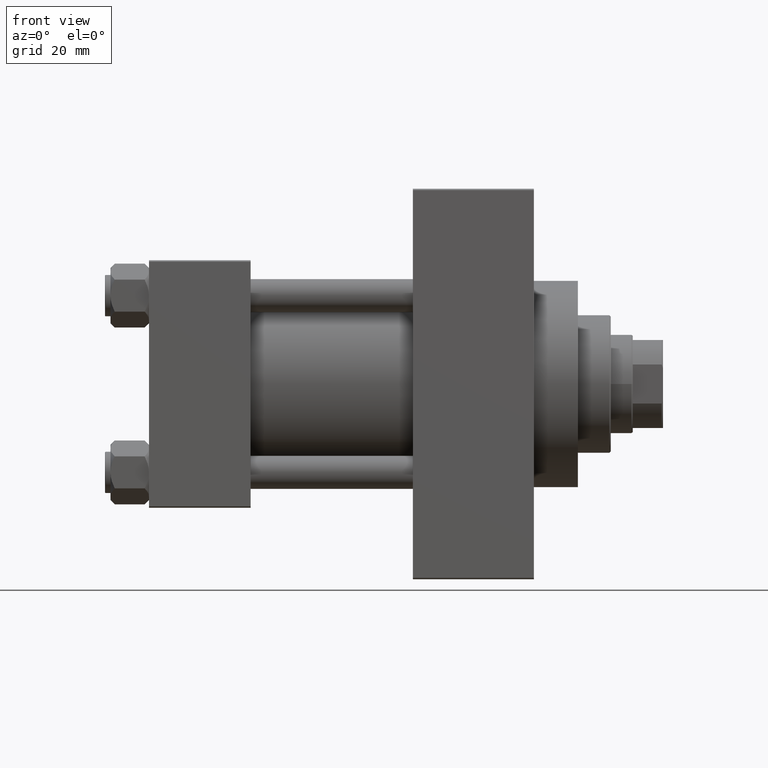
[diagram: clean part render]
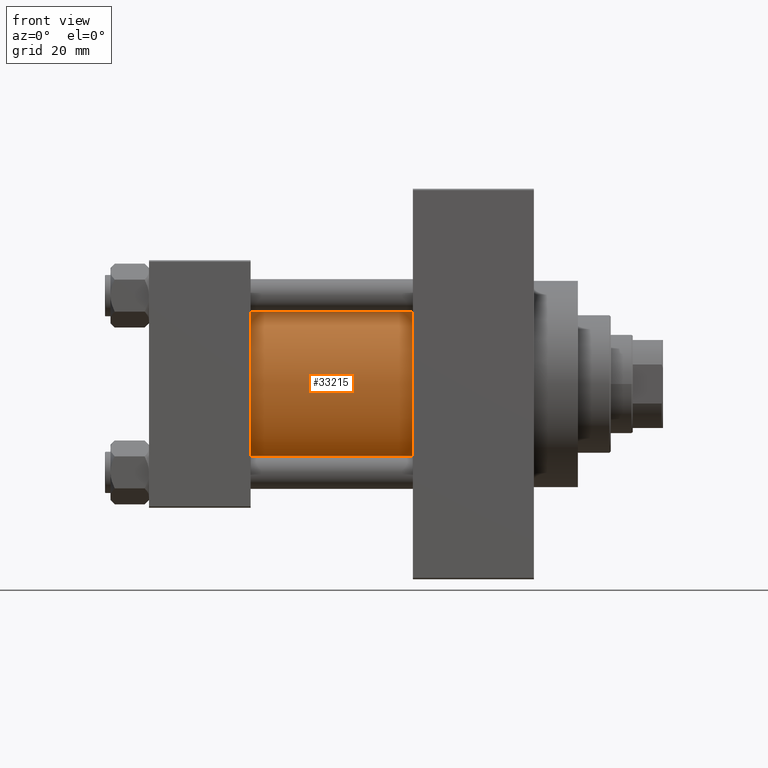
[diagram: same view with one face highlighted and labeled with its STEP entity id]
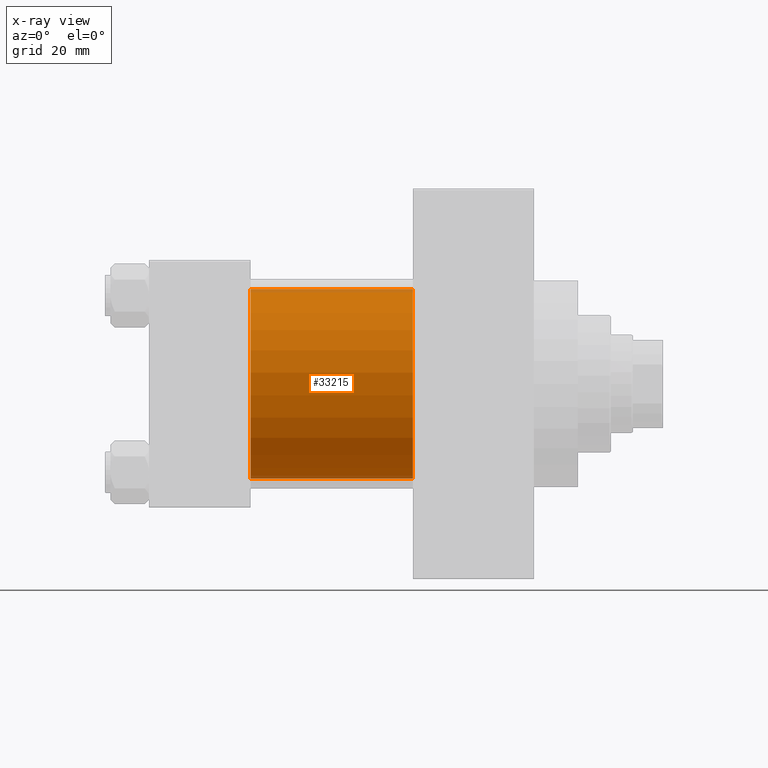
[diagram: x-ray of the same camera — body ghosted, the highlighted face saturated]
A machine part, front view. The second image highlights one B-rep face of the part: STEP entity #33215.
The next image is the same camera in x-ray: the body ghosted, the highlighted face saturated — about 3% of this face is hidden behind the body in this view.
In plain terms, the highlighted cylindrical surface (partial cylindrical patch) has radius 34.5 mm, axis along (-1, -0, -0).
Its self-contained STEP definition (entity closure, byte-faithful):
#453 = EDGE_CURVE ( 'NONE', #4393, #39262, #39562, .T. ) ;
#809 = LINE ( 'NONE', #15425, #40118 ) ;
#941 = VECTOR ( 'NONE', #11174, 1000.000000000000000 ) ;
#3379 = CARTESIAN_POINT ( 'NONE',  ( 96.00000000000000000, -2.602085213965210642E-15, 0.000000000000000000 ) ) ;
#3628 = FACE_OUTER_BOUND ( 'NONE', #35576, .T. ) ;
#3898 = VERTEX_POINT ( 'NONE', #30121 ) ;
#4393 = VERTEX_POINT ( 'NONE', #7474 ) ;
#5142 = ORIENTED_EDGE ( 'NONE', *, *, #34653, .T. ) ;
#7474 = CARTESIAN_POINT ( 'NONE',  ( 37.00000000000000000, -2.602085213965210642E-15, 34.50000000000000000 ) ) ;
#10590 = DIRECTION ( 'NONE',  ( 1.000000000000000000, 0.000000000000000000, 0.000000000000000000 ) ) ;
#10831 = DIRECTION ( 'NONE',  ( 0.000000000000000000, 0.000000000000000000, -1.000000000000000000 ) ) ;
#11174 = DIRECTION ( 'NONE',  ( -1.000000000000000000, -0.000000000000000000, -0.000000000000000000 ) ) ;
#11973 = AXIS2_PLACEMENT_3D ( 'NONE', #40786, #18741, #30130 ) ;
#13304 = ORIENTED_EDGE ( 'NONE', *, *, #453, .T. ) ;
#14270 = DIRECTION ( 'NONE',  ( 1.000000000000000000, -0.000000000000000000, 0.000000000000000000 ) ) ;
#14275 = AXIS2_PLACEMENT_3D ( 'NONE', #14980, #14270, #29361 ) ;
#14980 = CARTESIAN_POINT ( 'NONE',  ( 37.00000000000000000, -2.602085213965210642E-15, 0.000000000000000000 ) ) ;
#15425 = CARTESIAN_POINT ( 'NONE',  ( 96.00000000000000000, 1.622946243093158675E-15, -34.50000000000000000 ) ) ;
#18741 = DIRECTION ( 'NONE',  ( -1.000000000000000000, -0.000000000000000000, -0.000000000000000000 ) ) ;
#20134 = ORIENTED_EDGE ( 'NONE', *, *, #35129, .F. ) ;
#21889 = VERTEX_POINT ( 'NONE', #22009 ) ;
#22009 = CARTESIAN_POINT ( 'NONE',  ( 96.00000000000000000, -2.602085213965210642E-15, 34.50000000000000000 ) ) ;
#23598 = CARTESIAN_POINT ( 'NONE',  ( 37.00000000000000000, 1.622946243093158675E-15, -34.50000000000000000 ) ) ;
#24191 = EDGE_CURVE ( 'NONE', #3898, #39262, #809, .T. ) ;
#29361 = DIRECTION ( 'NONE',  ( 0.000000000000000000, 0.000000000000000000, 1.000000000000000000 ) ) ;
#29430 = AXIS2_PLACEMENT_3D ( 'NONE', #3379, #10590, #10831 ) ;
#30121 = CARTESIAN_POINT ( 'NONE',  ( 96.00000000000000000, 1.622946243093158675E-15, -34.50000000000000000 ) ) ;
#30130 = DIRECTION ( 'NONE',  ( 0.000000000000000000, 0.000000000000000000, 1.000000000000000000 ) ) ;
#33215 = ADVANCED_FACE ( 'NONE', ( #3628 ), #33586, .T. ) ;
#33586 = CYLINDRICAL_SURFACE ( 'NONE', #11973, 34.50000000000000000 ) ;
#34170 = CARTESIAN_POINT ( 'NONE',  ( 96.00000000000000000, -2.602085213965210642E-15, 34.50000000000000000 ) ) ;
#34653 = EDGE_CURVE ( 'NONE', #21889, #4393, #45070, .T. ) ;
#35129 = EDGE_CURVE ( 'NONE', #21889, #3898, #36520, .T. ) ;
#35576 = EDGE_LOOP ( 'NONE', ( #40200, #20134, #5142, #13304 ) ) ;
#36520 = CIRCLE ( 'NONE', #29430, 34.50000000000000000 ) ;
#37453 = DIRECTION ( 'NONE',  ( -1.000000000000000000, -0.000000000000000000, -0.000000000000000000 ) ) ;
#39262 = VERTEX_POINT ( 'NONE', #23598 ) ;
#39562 = CIRCLE ( 'NONE', #14275, 34.50000000000000000 ) ;
#40118 = VECTOR ( 'NONE', #37453, 1000.000000000000000 ) ;
#40200 = ORIENTED_EDGE ( 'NONE', *, *, #24191, .F. ) ;
#40786 = CARTESIAN_POINT ( 'NONE',  ( 96.00000000000000000, -2.602085213965210642E-15, 0.000000000000000000 ) ) ;
#45070 = LINE ( 'NONE', #34170, #941 ) ;